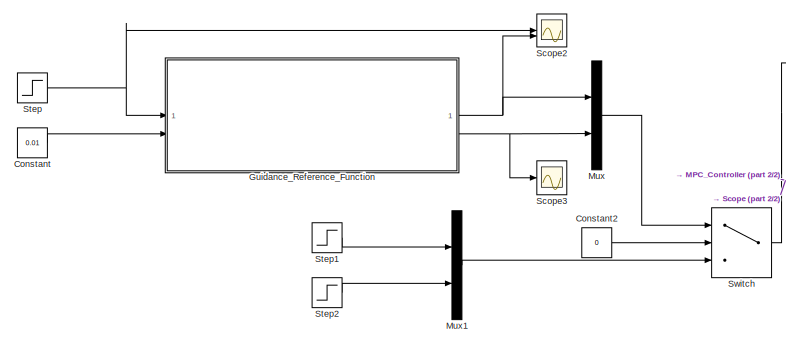
[diagram: root canvas - part 1/2, left side, full height]
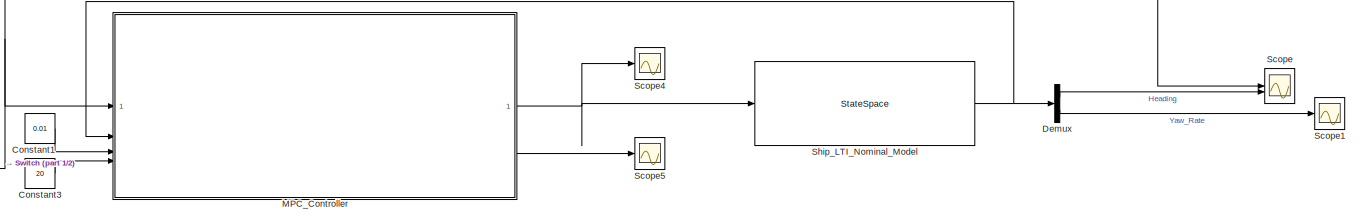
[diagram: root canvas - part 2/2, middle right region]
MODEL slx_2686cc09ab91
KIND model
CONFIG AbsTol = auto
CONFIG EnableMultiTasking = off
CONFIG FixedStep = auto
CONFIG MaxStep = auto
CONFIG MinStep = auto
CONFIG RelTol = 1e-3
CONFIG SampleTimeConstraint = Unconstrained
CONFIG SolverName = VariableStepAuto
CONFIG StartTime = 0.0
CONFIG StopTime = 8
BLOCK [Constant] Constant
  Value = 0.01
BLOCK [Constant] Constant1
  Value = 0.01
BLOCK [Constant] Constant2
  Value = 0
BLOCK [Constant] Constant3
  Value = 20
BLOCK [Demux] Demux
  Outputs = 2
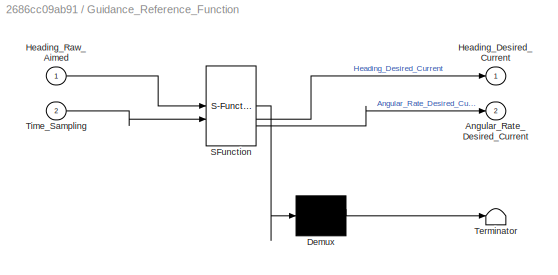
BLOCK [SubSystem] Guidance_Reference_Function
  ErrorFcn = Stateflow.Translate.translate
  PermitHierarchicalResolution = ExplicitOnly
  SFBlockType = MATLAB Function
  SystemSampleTime = 0.01
  TreatAsAtomicUnit = on
BLOCK [Demux] Guidance_Reference_Function/ Demux 
  Outputs = 1
BLOCK [S-Function] Guidance_Reference_Function/ SFunction 
  EnableBusSupport = on
  FunctionName = sf_sfun
  PortCounts = [2 3]
  SFcnIsStateOwnerBlock = off
  SFunctionDeploymentMode = off
  Tag = Stateflow S-Function 3
BLOCK [Terminator] Guidance_Reference_Function/ Terminator 
BLOCK [Outport] Guidance_Reference_Function/Angular_Rate_Desired_Current
  Port = 2
BLOCK [Outport] Guidance_Reference_Function/Heading_Desired_Current
BLOCK [Inport] Guidance_Reference_Function/Heading_Raw_Aimed
BLOCK [Inport] Guidance_Reference_Function/Time_Sampling
  Port = 2
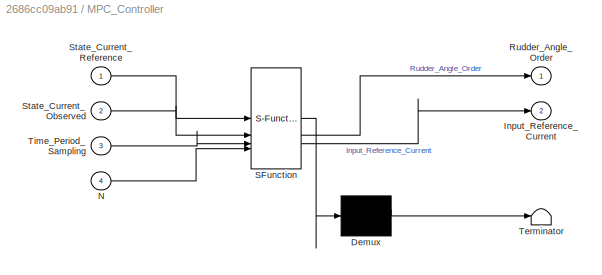
BLOCK [SubSystem] MPC_Controller
  ErrorFcn = Stateflow.Translate.translate
  PermitHierarchicalResolution = ExplicitOnly
  SFBlockType = MATLAB Function
  SystemSampleTime = 0.01
  TreatAsAtomicUnit = on
BLOCK [Demux] MPC_Controller/ Demux 
  Outputs = 1
BLOCK [S-Function] MPC_Controller/ SFunction 
  EnableBusSupport = on
  FunctionName = sf_sfun
  PortCounts = [4 3]
  SFcnIsStateOwnerBlock = off
  SFunctionDeploymentMode = off
  Tag = Stateflow S-Function 2
BLOCK [Terminator] MPC_Controller/ Terminator 
BLOCK [Outport] MPC_Controller/Input_Reference_Current
  Port = 2
BLOCK [Inport] MPC_Controller/N
  Port = 4
BLOCK [Outport] MPC_Controller/Rudder_Angle_Order
BLOCK [Inport] MPC_Controller/State_Current_Observed
  Port = 2
BLOCK [Inport] MPC_Controller/State_Current_Reference
BLOCK [Inport] MPC_Controller/Time_Period_Sampling
  Port = 3
BLOCK [Mux] Mux
  DisplayOption = bar
  Inputs = 2
BLOCK [Mux] Mux1
  DisplayOption = bar
  Inputs = 2
BLOCK [Scope] Scope
  Floating = off
  NumInputPorts = 2
  ScopeSpecificationString = Simulink.scopes.TimeScopeBlockCfg('CurrentConfiguration', extmgr.ConfigurationSet(extmgr.Configuration('Core','General UI',true),extmgr.Configuration('Core','Source UI',true),extmgr.Configuration('Sources','WiredSimulink',true),extmgr.Configuration('Visuals','Time Domain',true,'SerializedDisplays',{struct('MinYLimReal','-0.79225','MaxYLimReal','7.13027','YLabelReal','','MinYLimMag','0.00000','MaxY...<+1482ch>
BLOCK [Scope] Scope1
  Floating = off
  NumInputPorts = 1
  ScopeSpecificationString = Simulink.scopes.TimeScopeBlockCfg('CurrentConfiguration', extmgr.ConfigurationSet(extmgr.Configuration('Core','General UI',true),extmgr.Configuration('Core','Source UI',true),extmgr.Configuration('Sources','WiredSimulink',true,'DataLoggingVariableName','ScopeData1'),extmgr.Configuration('Visuals','Time Domain',true,'SerializedDisplays',{struct('MinYLimReal','-1.11832','MaxYLimReal','10.06484','YLa...<+1485ch>
BLOCK [Scope] Scope2
  Floating = off
  NumInputPorts = 2
  ScopeSpecificationString = Simulink.scopes.TimeScopeBlockCfg('CurrentConfiguration', extmgr.ConfigurationSet(extmgr.Configuration('Core','General UI',true),extmgr.Configuration('Core','Source UI',true),extmgr.Configuration('Sources','WiredSimulink',true,'DataLoggingVariableName','ScopeData2'),extmgr.Configuration('Visuals','Time Domain',true,'SerializedDisplays',{struct('MinYLimReal','-0.06545','MaxYLimReal','0.58905','YLab...<+1531ch>
BLOCK [Scope] Scope3
  Floating = off
  NumInputPorts = 1
  ScopeSpecificationString = Simulink.scopes.TimeScopeBlockCfg('CurrentConfiguration', extmgr.ConfigurationSet(extmgr.Configuration('Core','General UI',true),extmgr.Configuration('Core','Source UI',true),extmgr.Configuration('Sources','WiredSimulink',true,'DataLoggingVariableName','ScopeData3'),extmgr.Configuration('Visuals','Time Domain',true,'SerializedDisplays',{struct('MinYLimReal','-0.00884','MaxYLimReal','0.0796','YLabe...<+1525ch>
BLOCK [Scope] Scope4
  Floating = off
  NumInputPorts = 1
  ScopeSpecificationString = Simulink.scopes.TimeScopeBlockCfg('CurrentConfiguration', extmgr.ConfigurationSet(extmgr.Configuration('Core','General UI',true),extmgr.Configuration('Core','Source UI',true),extmgr.Configuration('Sources','WiredSimulink',true,'DataLoggingVariableName','ScopeData4'),extmgr.Configuration('Visuals','Time Domain',true,'SerializedDisplays',{struct('MinYLimReal','-1.50711','MaxYLimReal','10.91799','YLa...<+1510ch>
BLOCK [Scope] Scope5
  Floating = off
  NumInputPorts = 1
  ScopeSpecificationString = Simulink.scopes.TimeScopeBlockCfg('CurrentConfiguration', extmgr.ConfigurationSet(extmgr.Configuration('Core','General UI',true),extmgr.Configuration('Core','Source UI',true),extmgr.Configuration('Sources','WiredSimulink',true,'DataLoggingVariableName','ScopeData5'),extmgr.Configuration('Visuals','Time Domain',true,'SerializedDisplays',{struct('MinYLimReal','0.33323','MaxYLimReal','0.53323','YLabe...<+1509ch>
BLOCK [StateSpace] Ship_LTI_Nominal_Model
  A = State_Matrix_Ship_Nominal
  B = Input_Matrix_Ship_Nominal
  C = Measurement_Matrix_Ship_Nominal
  D = Input_Measurement_Matrix_Ship_Nominal
  InitialCondition = 0
BLOCK [Step] Step
  After = 30*(pi/180)
  SampleTime = 0
BLOCK [Step] Step1
  After = 30*(pi/180)
  SampleTime = 0
  Time = 0
BLOCK [Step] Step2
  After = 15*(pi/180)
  SampleTime = 0
  Time = 0
BLOCK [Switch] Switch
  Criteria = u2 > Threshold
  InputSameDT = off
  SaturateOnIntegerOverflow = off
LINE Constant1:1 -> MPC_Controller:3
LINE Constant2:1 -> Switch:2
LINE Constant3:1 -> MPC_Controller:4
LINE Constant:1 -> Guidance_Reference_Function:2
LINE Demux:1 -> Scope:2
LINE Demux:2 -> Scope1:1
NET Guidance_Reference_Function:1 -> Mux:1, Scope2:2
NET Guidance_Reference_Function:2 -> Mux:2, Scope3:1
NET MPC_Controller:1 -> Scope4:1, Ship_LTI_Nominal_Model:1
LINE MPC_Controller:2 -> Scope5:1
LINE Mux1:1 -> Switch:3
LINE Mux:1 -> Switch:1
NET Ship_LTI_Nominal_Model:1 -> Demux:1, MPC_Controller:2
LINE Step1:1 -> Mux1:1
LINE Step2:1 -> Mux1:2
NET Step:1 -> Guidance_Reference_Function:1, Scope2:1
NET Switch:1 -> MPC_Controller:1, Scope:1
note: NET lines group one-source signal fan-out (src -> all destinations, sorted); 1:1 wires keep LINE
CHART MPC_Controller states=1 transitions=1
  STATE_LABEL 'eML_blk_kernel()'
  STATE_LABEL 'SCRIPT:\nfunction [Rudder_Angle_Order,Input_Reference_Current] = Model_Predictive_Controller_Ship_Heading_Control(State_Current_Reference,...\n                                                                                                         State_Current_Observed,...\n                                                                                                         Time_Period_Sampling,....<+3608ch>'
CHART Guidance_Reference_Function states=1 transitions=1
  STATE_LABEL 'eML_blk_kernel()'
  STATE_LABEL 'SCRIPT:\nfunction [Heading_Desired_Current,Angular_Rate_Desired_Current] = Reference_To_Desired(Heading_Raw_Aimed,Time_Sampling)\n\n% Initialization:\n% Persistents for reference model used:\npersistent Angular_Acceleration_Desired_Previous;\npersistent Rudder_Rate_Desired_Previous;\npersistent Heading_Desired_Previous;\npersistent Heading_Aimed_Previous_Raw;\nif isempty(Heading_Desired_Previous)\n    Headi...<+1826ch>'
CHART  states=0 transitions=0
CHART  states=0 transitions=0
